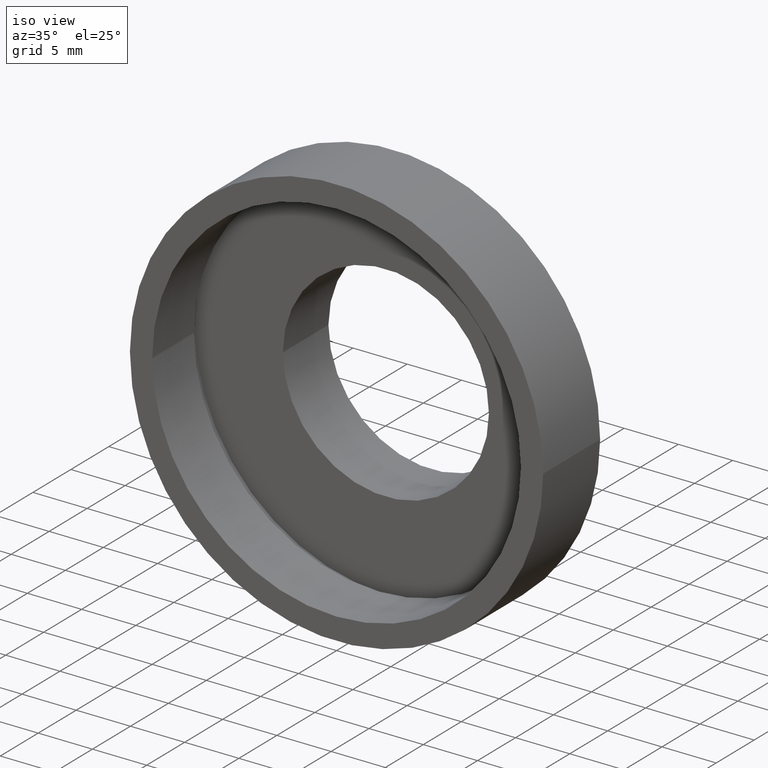
[diagram: clean part render]
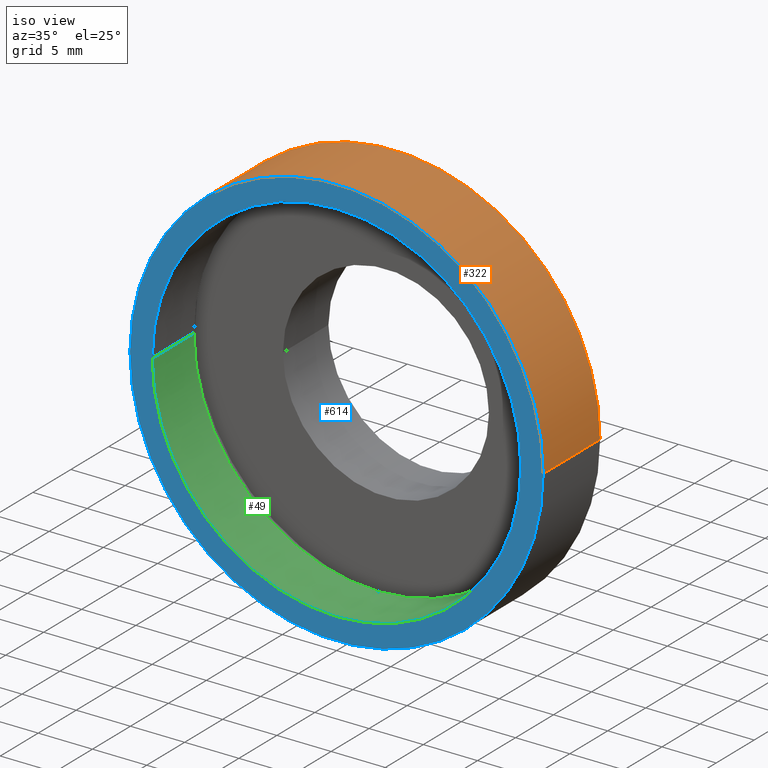
[diagram: same view with three faces highlighted in distinct colors, each labeled with its STEP entity id]
A machine part, iso view with three faces highlighted in distinct colors.
Their STEP definitions:

[orange] entity #322 — the highlighted cylindrical surface (partial cylindrical patch) has radius 19.05 mm, axis along (-0, 1, -0).
#12 = VERTEX_POINT ( 'NONE', #388 ) ;
#14 = CARTESIAN_POINT ( 'NONE',  ( 2.067940818438636500E-015, -3.469446951953614200E-015, 0.0000000000000000000 ) ) ;
#45 = VERTEX_POINT ( 'NONE', #256 ) ;
#61 = DIRECTION ( 'NONE',  ( -1.224646799147351000E-016, 1.000000000000000000, -0.0000000000000000000 ) ) ;
#69 = CIRCLE ( 'NONE', #85, 19.05000000000000100 ) ;
#85 = AXIS2_PLACEMENT_3D ( 'NONE', #243, #61, #260 ) ;
#86 = DIRECTION ( 'NONE',  ( -1.000000000000000000, -1.821231995776175700E-016, 0.0000000000000000000 ) ) ;
#103 = FACE_OUTER_BOUND ( 'NONE', #514, .T. ) ;
#121 = EDGE_CURVE ( 'NONE', #621, #415, #159, .T. ) ;
#159 = CIRCLE ( 'NONE', #497, 19.04999999999999700 ) ;
#162 = ORIENTED_EDGE ( 'NONE', *, *, #372, .F. ) ;
#189 = VECTOR ( 'NONE', #490, 1000.000000000000000 ) ;
#243 = CARTESIAN_POINT ( 'NONE',  ( 1.149455719078122700E-015, 7.499999999999998200, 0.0000000000000000000 ) ) ;
#256 = CARTESIAN_POINT ( 'NONE',  ( 19.05000000000000100, 7.500000000000000900, 2.332952152375707600E-015 ) ) ;
#257 = CARTESIAN_POINT ( 'NONE',  ( -19.04999999999999400, -5.802399104329317500E-015, 0.0000000000000000000 ) ) ;
#260 = DIRECTION ( 'NONE',  ( -1.000000000000000000, -1.365923996832131600E-016, 0.0000000000000000000 ) ) ;
#322 = ADVANCED_FACE ( 'NONE', ( #103 ), #609, .T. ) ;
#330 = ORIENTED_EDGE ( 'NONE', *, *, #588, .F. ) ;
#346 = CARTESIAN_POINT ( 'NONE',  ( 0.0000000000000000000, 16.88601823708207700, 0.0000000000000000000 ) ) ;
#347 = AXIS2_PLACEMENT_3D ( 'NONE', #346, #356, #86 ) ;
#355 = DIRECTION ( 'NONE',  ( -1.000000000000000000, -1.224646799147351000E-016, 0.0000000000000000000 ) ) ;
#356 = DIRECTION ( 'NONE',  ( -1.224646799147351000E-016, 1.000000000000000000, -0.0000000000000000000 ) ) ;
#372 = EDGE_CURVE ( 'NONE', #621, #12, #525, .T. ) ;
#388 = CARTESIAN_POINT ( 'NONE',  ( -19.05000000000000100, 7.499999999999995600, 0.0000000000000000000 ) ) ;
#415 = VERTEX_POINT ( 'NONE', #549 ) ;
#450 = LINE ( 'NONE', #542, #541 ) ;
#490 = DIRECTION ( 'NONE',  ( -1.224646799147351000E-016, 1.000000000000000000, -0.0000000000000000000 ) ) ;
#497 = AXIS2_PLACEMENT_3D ( 'NONE', #14, #511, #355 ) ;
#503 = CARTESIAN_POINT ( 'NONE',  ( -19.04999999999999700, 16.88601823708207300, 0.0000000000000000000 ) ) ;
#511 = DIRECTION ( 'NONE',  ( -1.224646799147351000E-016, 1.000000000000000000, -0.0000000000000000000 ) ) ;
#514 = EDGE_LOOP ( 'NONE', ( #527, #574, #330, #162 ) ) ;
#525 = LINE ( 'NONE', #503, #189 ) ;
#527 = ORIENTED_EDGE ( 'NONE', *, *, #121, .T. ) ;
#540 = DIRECTION ( 'NONE',  ( -1.224646799147351000E-016, 1.000000000000000000, -0.0000000000000000000 ) ) ;
#541 = VECTOR ( 'NONE', #540, 1000.000000000000000 ) ;
#542 = CARTESIAN_POINT ( 'NONE',  ( 19.04999999999999700, 16.88601823708208000, 2.332952152375707300E-015 ) ) ;
#549 = CARTESIAN_POINT ( 'NONE',  ( 19.05000000000000100, -1.136494799577911100E-015, 2.332952152375707600E-015 ) ) ;
#551 = EDGE_CURVE ( 'NONE', #415, #45, #450, .T. ) ;
#574 = ORIENTED_EDGE ( 'NONE', *, *, #551, .T. ) ;
#588 = EDGE_CURVE ( 'NONE', #12, #45, #69, .T. ) ;
#609 = CYLINDRICAL_SURFACE ( 'NONE', #347, 19.04999999999999700 ) ;
#621 = VERTEX_POINT ( 'NONE', #257 ) ;

[blue] entity #614 — the highlighted planar face has unit normal (-0, 1, 0).
#14 = CARTESIAN_POINT ( 'NONE',  ( 2.067940818438636500E-015, -3.469446951953614200E-015, 0.0000000000000000000 ) ) ;
#15 = CARTESIAN_POINT ( 'NONE',  ( 17.00000000000000400, -1.387547393403117700E-015, 2.081899558550500700E-015 ) ) ;
#16 = AXIS2_PLACEMENT_3D ( 'NONE', #207, #398, #163 ) ;
#34 = EDGE_LOOP ( 'NONE', ( #578, #262 ) ) ;
#36 = DIRECTION ( 'NONE',  ( -1.000000000000000000, -1.224646799147351000E-016, 0.0000000000000000000 ) ) ;
#62 = FACE_OUTER_BOUND ( 'NONE', #125, .T. ) ;
#121 = EDGE_CURVE ( 'NONE', #621, #415, #159, .T. ) ;
#125 = EDGE_LOOP ( 'NONE', ( #197, #538 ) ) ;
#134 = AXIS2_PLACEMENT_3D ( 'NONE', #152, #269, #36 ) ;
#146 = AXIS2_PLACEMENT_3D ( 'NONE', #580, #531, #446 ) ;
#149 = VERTEX_POINT ( 'NONE', #15 ) ;
#152 = CARTESIAN_POINT ( 'NONE',  ( 19.05000000000000100, -8.225062277234867800E-016, 0.0000000000000000000 ) ) ;
#159 = CIRCLE ( 'NONE', #497, 19.04999999999999700 ) ;
#163 = DIRECTION ( 'NONE',  ( -1.000000000000000000, -1.224646799147351000E-016, 0.0000000000000000000 ) ) ;
#197 = ORIENTED_EDGE ( 'NONE', *, *, #121, .F. ) ;
#207 = CARTESIAN_POINT ( 'NONE',  ( 2.067940818438636500E-015, -3.469446951953614200E-015, 0.0000000000000000000 ) ) ;
#217 = DIRECTION ( 'NONE',  ( -1.000000000000000000, -1.224646799147351500E-016, 0.0000000000000000000 ) ) ;
#223 = DIRECTION ( 'NONE',  ( -1.224646799147351000E-016, 1.000000000000000000, -0.0000000000000000000 ) ) ;
#241 = PLANE ( 'NONE',  #134 ) ;
#257 = CARTESIAN_POINT ( 'NONE',  ( -19.04999999999999400, -5.802399104329317500E-015, 0.0000000000000000000 ) ) ;
#262 = ORIENTED_EDGE ( 'NONE', *, *, #424, .T. ) ;
#269 = DIRECTION ( 'NONE',  ( -1.224646799147351000E-016, 1.000000000000000000, 0.0000000000000000000 ) ) ;
#296 = VERTEX_POINT ( 'NONE', #325 ) ;
#318 = EDGE_CURVE ( 'NONE', #296, #149, #552, .T. ) ;
#325 = CARTESIAN_POINT ( 'NONE',  ( -16.99999999999999600, -5.551346510504111700E-015, 0.0000000000000000000 ) ) ;
#355 = DIRECTION ( 'NONE',  ( -1.000000000000000000, -1.224646799147351000E-016, 0.0000000000000000000 ) ) ;
#398 = DIRECTION ( 'NONE',  ( -1.224646799147351000E-016, 1.000000000000000000, -0.0000000000000000000 ) ) ;
#399 = CIRCLE ( 'NONE', #16, 19.04999999999999700 ) ;
#415 = VERTEX_POINT ( 'NONE', #549 ) ;
#419 = FACE_BOUND ( 'NONE', #34, .T. ) ;
#424 = EDGE_CURVE ( 'NONE', #149, #296, #577, .T. ) ;
#442 = CARTESIAN_POINT ( 'NONE',  ( 2.067940818438636500E-015, -3.469446951953614200E-015, 0.0000000000000000000 ) ) ;
#446 = DIRECTION ( 'NONE',  ( -1.000000000000000000, -1.224646799147351500E-016, 0.0000000000000000000 ) ) ;
#497 = AXIS2_PLACEMENT_3D ( 'NONE', #14, #511, #355 ) ;
#511 = DIRECTION ( 'NONE',  ( -1.224646799147351000E-016, 1.000000000000000000, -0.0000000000000000000 ) ) ;
#531 = DIRECTION ( 'NONE',  ( -1.224646799147351000E-016, 1.000000000000000000, -0.0000000000000000000 ) ) ;
#537 = AXIS2_PLACEMENT_3D ( 'NONE', #442, #223, #217 ) ;
#538 = ORIENTED_EDGE ( 'NONE', *, *, #566, .F. ) ;
#549 = CARTESIAN_POINT ( 'NONE',  ( 19.05000000000000100, -1.136494799577911100E-015, 2.332952152375707600E-015 ) ) ;
#552 = CIRCLE ( 'NONE', #146, 17.00000000000000000 ) ;
#566 = EDGE_CURVE ( 'NONE', #415, #621, #399, .T. ) ;
#577 = CIRCLE ( 'NONE', #537, 17.00000000000000000 ) ;
#578 = ORIENTED_EDGE ( 'NONE', *, *, #318, .T. ) ;
#580 = CARTESIAN_POINT ( 'NONE',  ( 2.067940818438636500E-015, -3.469446951953614200E-015, 0.0000000000000000000 ) ) ;
#614 = ADVANCED_FACE ( 'NONE', ( #62, #419 ), #241, .F. ) ;
#621 = VERTEX_POINT ( 'NONE', #257 ) ;

[green] entity #49 — the highlighted cylindrical surface (partial cylindrical patch) has radius 17 mm, axis along (-0, 1, -0).
#15 = CARTESIAN_POINT ( 'NONE',  ( 17.00000000000000400, -1.387547393403117700E-015, 2.081899558550500700E-015 ) ) ;
#49 = ADVANCED_FACE ( 'NONE', ( #101 ), #439, .F. ) ;
#57 = CARTESIAN_POINT ( 'NONE',  ( 0.0000000000000000000, 16.88601823708207700, 0.0000000000000000000 ) ) ;
#65 = EDGE_CURVE ( 'NONE', #571, #148, #521, .T. ) ;
#76 = AXIS2_PLACEMENT_3D ( 'NONE', #57, #204, #430 ) ;
#101 = FACE_OUTER_BOUND ( 'NONE', #507, .T. ) ;
#145 = DIRECTION ( 'NONE',  ( -1.224646799147351000E-016, 1.000000000000000000, -0.0000000000000000000 ) ) ;
#147 = DIRECTION ( 'NONE',  ( -1.224646799147351000E-016, 1.000000000000000000, -0.0000000000000000000 ) ) ;
#148 = VERTEX_POINT ( 'NONE', #557 ) ;
#149 = VERTEX_POINT ( 'NONE', #15 ) ;
#161 = ORIENTED_EDGE ( 'NONE', *, *, #65, .T. ) ;
#180 = VECTOR ( 'NONE', #444, 1000.000000000000000 ) ;
#204 = DIRECTION ( 'NONE',  ( -1.224646799147351000E-016, 1.000000000000000000, -0.0000000000000000000 ) ) ;
#217 = DIRECTION ( 'NONE',  ( -1.000000000000000000, -1.224646799147351500E-016, 0.0000000000000000000 ) ) ;
#223 = DIRECTION ( 'NONE',  ( -1.224646799147351000E-016, 1.000000000000000000, -0.0000000000000000000 ) ) ;
#228 = EDGE_CURVE ( 'NONE', #296, #148, #426, .T. ) ;
#296 = VERTEX_POINT ( 'NONE', #325 ) ;
#305 = ORIENTED_EDGE ( 'NONE', *, *, #228, .F. ) ;
#325 = CARTESIAN_POINT ( 'NONE',  ( -16.99999999999999600, -5.551346510504111700E-015, 0.0000000000000000000 ) ) ;
#328 = LINE ( 'NONE', #379, #380 ) ;
#379 = CARTESIAN_POINT ( 'NONE',  ( 17.00000000000000000, 16.88601823708208000, 2.081899558550500300E-015 ) ) ;
#380 = VECTOR ( 'NONE', #147, 1000.000000000000000 ) ;
#382 = EDGE_CURVE ( 'NONE', #149, #571, #328, .T. ) ;
#423 = DIRECTION ( 'NONE',  ( -1.000000000000000000, -1.020425574104004000E-016, 0.0000000000000000000 ) ) ;
#424 = EDGE_CURVE ( 'NONE', #149, #296, #577, .T. ) ;
#426 = LINE ( 'NONE', #427, #180 ) ;
#427 = CARTESIAN_POINT ( 'NONE',  ( -17.00000000000000000, 16.88601823708207300, 0.0000000000000000000 ) ) ;
#430 = DIRECTION ( 'NONE',  ( -1.000000000000000000, -2.040851148208008200E-016, 0.0000000000000000000 ) ) ;
#434 = CARTESIAN_POINT ( 'NONE',  ( 17.00000000000000400, 5.500000000000000000, 2.081899558550500700E-015 ) ) ;
#439 = CYLINDRICAL_SURFACE ( 'NONE', #76, 17.00000000000000000 ) ;
#442 = CARTESIAN_POINT ( 'NONE',  ( 2.067940818438636500E-015, -3.469446951953614200E-015, 0.0000000000000000000 ) ) ;
#444 = DIRECTION ( 'NONE',  ( -1.224646799147351000E-016, 1.000000000000000000, -0.0000000000000000000 ) ) ;
#454 = AXIS2_PLACEMENT_3D ( 'NONE', #567, #145, #423 ) ;
#507 = EDGE_LOOP ( 'NONE', ( #622, #616, #161, #305 ) ) ;
#521 = CIRCLE ( 'NONE', #454, 17.00000000000000400 ) ;
#537 = AXIS2_PLACEMENT_3D ( 'NONE', #442, #223, #217 ) ;
#557 = CARTESIAN_POINT ( 'NONE',  ( -17.00000000000000400, 5.499999999999996400, 0.0000000000000000000 ) ) ;
#567 = CARTESIAN_POINT ( 'NONE',  ( 1.394385078907593000E-015, 5.499999999999998200, 0.0000000000000000000 ) ) ;
#571 = VERTEX_POINT ( 'NONE', #434 ) ;
#577 = CIRCLE ( 'NONE', #537, 17.00000000000000000 ) ;
#616 = ORIENTED_EDGE ( 'NONE', *, *, #382, .T. ) ;
#622 = ORIENTED_EDGE ( 'NONE', *, *, #424, .F. ) ;